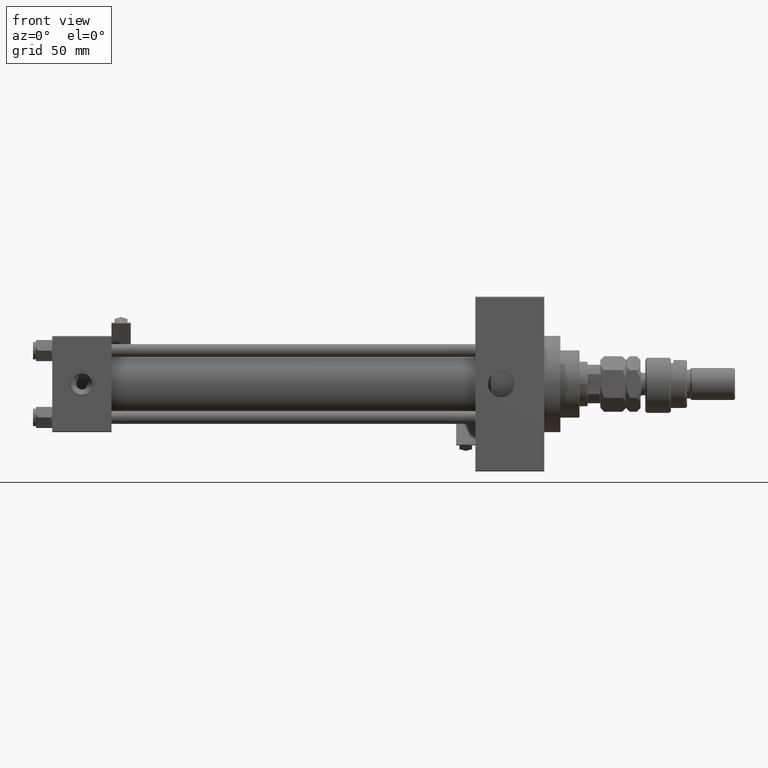
[diagram: clean part render]
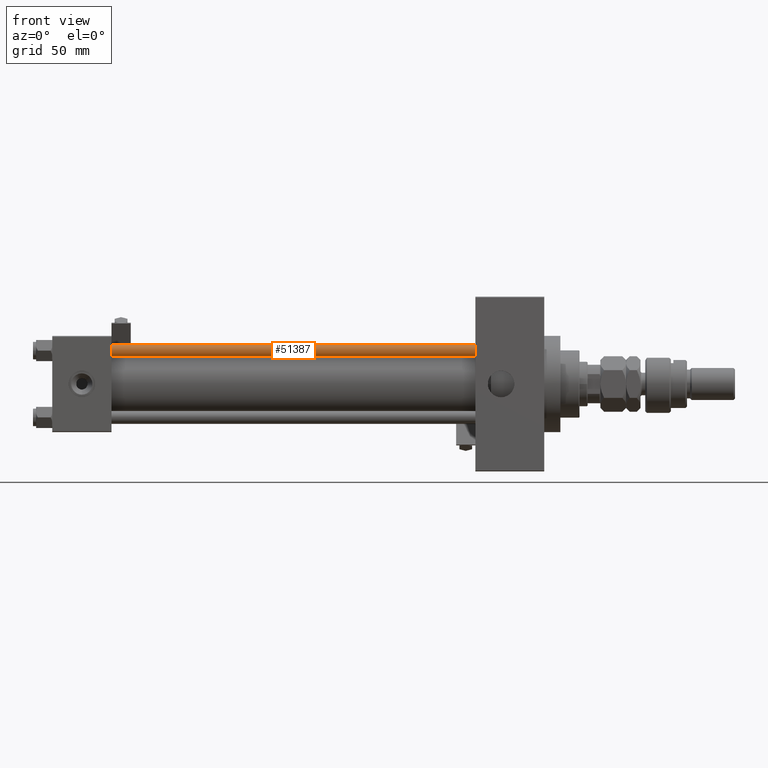
[diagram: same view with one face highlighted and labeled with its STEP entity id]
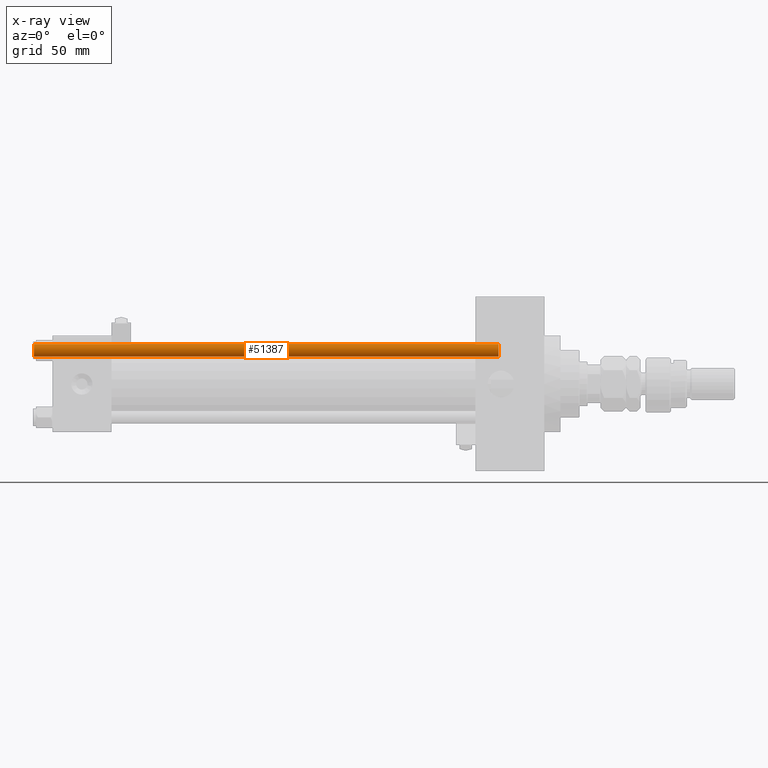
[diagram: x-ray of the same camera — body ghosted, the highlighted face saturated]
A machine part, front view. The second image highlights one B-rep face of the part: STEP entity #51387.
The next image is the same camera in x-ray: the body ghosted, the highlighted face saturated — about 0% of this face is hidden behind the body in this view.
In plain terms, the highlighted cylindrical surface (edge-blend (fillet) strip) has radius 4 mm, axis along (1, 0, 0).
Its self-contained STEP definition (entity closure, byte-faithful):
#241 = DIRECTION ( 'NONE',  ( 1.000000000000000000, 0.000000000000000000, 0.000000000000000000 ) ) ;
#579 = LINE ( 'NONE', #16983, #18068 ) ;
#3217 = CARTESIAN_POINT ( 'NONE',  ( 0.000000000000000000, 0.000000000000000000, 291.0000000000000000 ) ) ;
#3670 = ORIENTED_EDGE ( 'NONE', *, *, #48631, .T. ) ;
#5840 = CARTESIAN_POINT ( 'NONE',  ( -4.000000000000000000, 0.000000000000000000, 0.5000000000000559552 ) ) ;
#5941 = CIRCLE ( 'NONE', #51472, 4.000000000000000000 ) ;
#6196 = LINE ( 'NONE', #26643, #48512 ) ;
#12168 = CARTESIAN_POINT ( 'NONE',  ( 4.000000000000000000, 4.898587196589412829E-16, 290.4999999999999432 ) ) ;
#12685 = DIRECTION ( 'NONE',  ( -0.000000000000000000, -0.000000000000000000, -1.000000000000000000 ) ) ;
#15179 = DIRECTION ( 'NONE',  ( -0.000000000000000000, -0.000000000000000000, 1.000000000000000000 ) ) ;
#16983 = CARTESIAN_POINT ( 'NONE',  ( 4.000000000000000000, 4.898587196589412829E-16, 291.0000000000000000 ) ) ;
#18068 = VECTOR ( 'NONE', #12685, 1000.000000000000000 ) ;
#19904 = VERTEX_POINT ( 'NONE', #33860 ) ;
#21931 = EDGE_CURVE ( 'NONE', #22051, #22858, #5941, .T. ) ;
#22051 = VERTEX_POINT ( 'NONE', #50363 ) ;
#22858 = VERTEX_POINT ( 'NONE', #5840 ) ;
#23939 = DIRECTION ( 'NONE',  ( -1.000000000000000000, 0.000000000000000000, 0.000000000000000000 ) ) ;
#25028 = ORIENTED_EDGE ( 'NONE', *, *, #21931, .T. ) ;
#26389 = EDGE_LOOP ( 'NONE', ( #40317, #3670, #25028, #48454 ) ) ;
#26643 = CARTESIAN_POINT ( 'NONE',  ( -4.000000000000000000, 0.000000000000000000, 291.0000000000000000 ) ) ;
#29010 = CARTESIAN_POINT ( 'NONE',  ( 0.000000000000000000, 0.000000000000000000, 290.4999999999999432 ) ) ;
#30647 = CIRCLE ( 'NONE', #35817, 4.000000000000000000 ) ;
#31313 = CARTESIAN_POINT ( 'NONE',  ( 0.000000000000000000, 0.000000000000000000, 0.5000000000000559552 ) ) ;
#31995 = FACE_OUTER_BOUND ( 'NONE', #26389, .T. ) ;
#33860 = CARTESIAN_POINT ( 'NONE',  ( -4.000000000000000000, 0.000000000000000000, 290.4999999999999432 ) ) ;
#35219 = EDGE_CURVE ( 'NONE', #19904, #22858, #6196, .T. ) ;
#35817 = AXIS2_PLACEMENT_3D ( 'NONE', #29010, #41662, #241 ) ;
#39280 = CYLINDRICAL_SURFACE ( 'NONE', #47268, 4.000000000000000000 ) ;
#40317 = ORIENTED_EDGE ( 'NONE', *, *, #42334, .T. ) ;
#41662 = DIRECTION ( 'NONE',  ( 0.000000000000000000, 0.000000000000000000, -1.000000000000000000 ) ) ;
#42334 = EDGE_CURVE ( 'NONE', #19904, #48528, #30647, .T. ) ;
#44242 = DIRECTION ( 'NONE',  ( 1.000000000000000000, 0.000000000000000000, 0.000000000000000000 ) ) ;
#46824 = DIRECTION ( 'NONE',  ( -0.000000000000000000, -0.000000000000000000, -1.000000000000000000 ) ) ;
#47268 = AXIS2_PLACEMENT_3D ( 'NONE', #3217, #48678, #23939 ) ;
#48454 = ORIENTED_EDGE ( 'NONE', *, *, #35219, .F. ) ;
#48512 = VECTOR ( 'NONE', #46824, 1000.000000000000000 ) ;
#48528 = VERTEX_POINT ( 'NONE', #12168 ) ;
#48631 = EDGE_CURVE ( 'NONE', #48528, #22051, #579, .T. ) ;
#48678 = DIRECTION ( 'NONE',  ( -0.000000000000000000, -0.000000000000000000, -1.000000000000000000 ) ) ;
#50363 = CARTESIAN_POINT ( 'NONE',  ( 4.000000000000000000, 4.898587196589412829E-16, 0.5000000000000559552 ) ) ;
#51387 = ADVANCED_FACE ( 'NONE', ( #31995 ), #39280, .T. ) ;
#51472 = AXIS2_PLACEMENT_3D ( 'NONE', #31313, #15179, #44242 ) ;